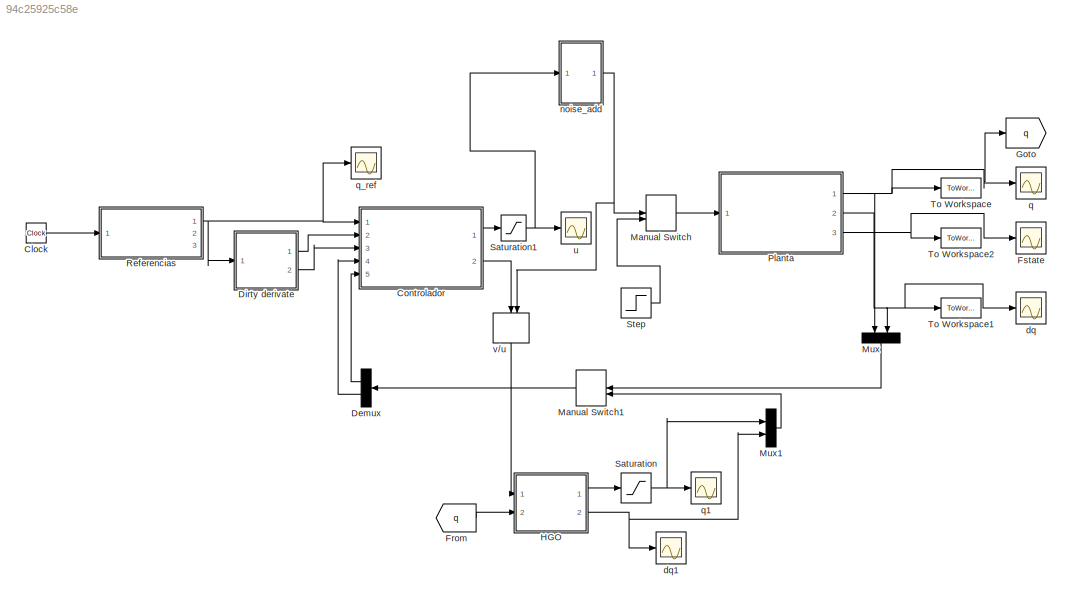
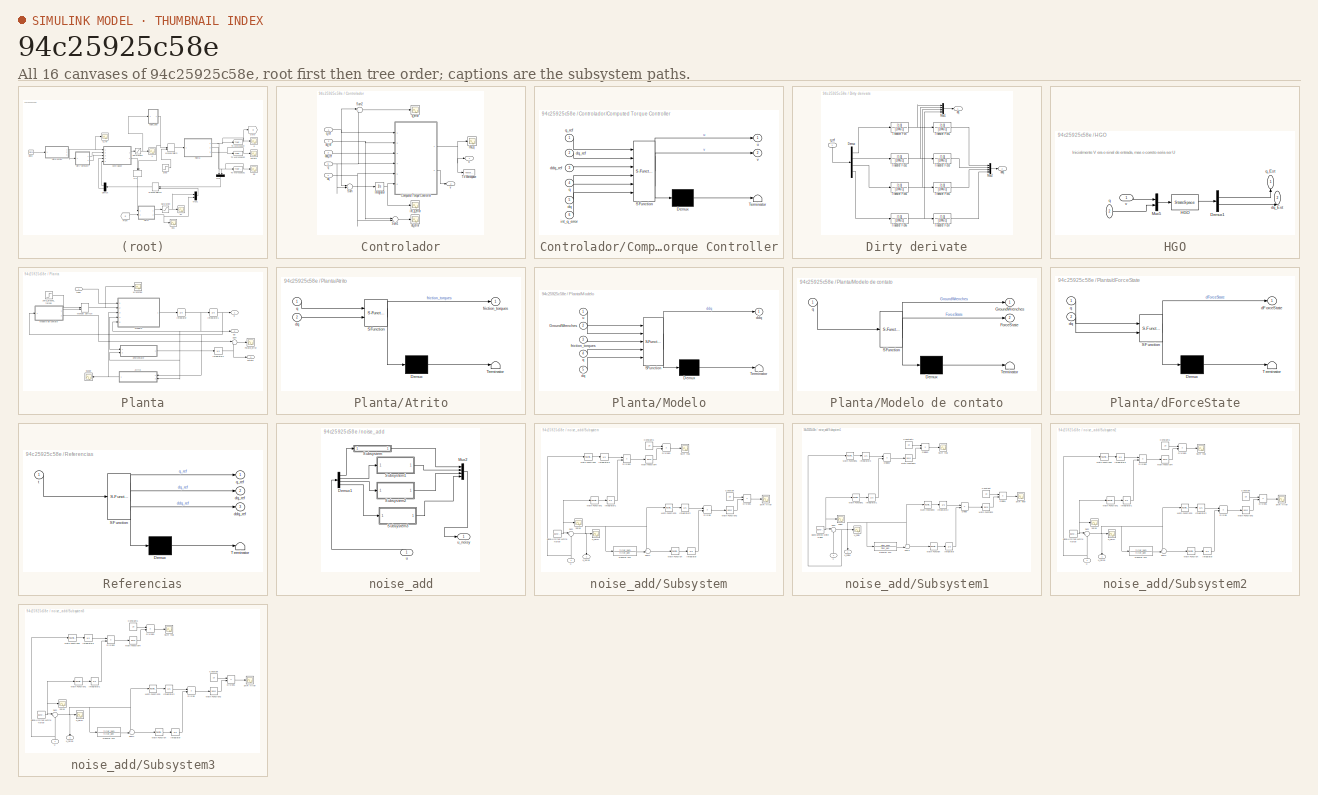
[diagram: thumbnail index - all 16 canvases of the model, root first then tree order]
MODEL slx_94c25925c58e
KIND model
CONFIG AbsTol = auto
CONFIG EnableMultiTasking = on
CONFIG FixedStep = 1e-6
CONFIG MaxStep = 1e-2
CONFIG MinStep = auto
CONFIG RelTol = 1e-3
CONFIG SampleTimeConstraint = Unconstrained
CONFIG Solver = VariableStepAuto
CONFIG SolverName = VariableStepAuto
CONFIG StartTime = 0.0
CONFIG StopTime = 10
BLOCK [Clock] Clock
BLOCK [SubSystem] Controlador
  Ports = [5, 2]
  RequestExecContextInheritance = off
  Variant = off
BLOCK [SubSystem] Controlador/Computed Torque Controller
  ErrorFcn = Stateflow.Translate.translate
  PermitHierarchicalResolution = ExplicitOnly
  Ports = [6, 2]
  RequestExecContextInheritance = off
  SFBlockType = MATLAB Function
  TreatAsAtomicUnit = on
  Variant = off
BLOCK [Demux] Controlador/Computed Torque Controller/ Demux 
  Outputs = 1
  Ports = [1, 1]
BLOCK [S-Function] Controlador/Computed Torque Controller/ SFunction 
  EnableBusSupport = on
  FunctionName = sf_sfun
  Parameters = G_ctrl,Inertia_ctrl,Kd,Ki,Kp,L_ctrl,Mass_ctrl,R_ctrl,h_ctrl,joint_type
  PortCounts = [6 3]
  Ports = [6, 3]
  SFcnIsStateOwnerBlock = off
  SFunctionDeploymentMode = off
  Tag = Stateflow S-Function Leg_4DOF_HGO_v4 1
BLOCK [Terminator] Controlador/Computed Torque Controller/ Terminator 
BLOCK [Inport] Controlador/Computed Torque Controller/ddq_ref
  IconDisplay = Port number
  Port = 3
BLOCK [Inport] Controlador/Computed Torque Controller/dq
  IconDisplay = Port number
  Port = 5
BLOCK [Inport] Controlador/Computed Torque Controller/dq_ref
  IconDisplay = Port number
  Port = 2
BLOCK [Inport] Controlador/Computed Torque Controller/int_q_error
  IconDisplay = Port number
  Port = 6
BLOCK [Inport] Controlador/Computed Torque Controller/q
  IconDisplay = Port number
  Port = 4
BLOCK [Inport] Controlador/Computed Torque Controller/q_ref
  IconDisplay = Port number
BLOCK [Outport] Controlador/Computed Torque Controller/u
  IconDisplay = Port number
BLOCK [Outport] Controlador/Computed Torque Controller/v
  IconDisplay = Port number
  Port = 2
BLOCK [Integrator] Controlador/Integrator
  InitialCondition = zeros(4,1)
  Ports = [1, 1]
BLOCK [Sum] Controlador/Sum
  IconShape = round
  InputSameDT = off
  Inputs = |+-
  OutDataTypeStr = Inherit: Inherit via internal rule
  Ports = [2, 1]
  SaturateOnIntegerOverflow = off
BLOCK [Sum] Controlador/Sum1
  IconShape = round
  InputSameDT = off
  Inputs = |+-
  OutDataTypeStr = Inherit: Inherit via internal rule
  Ports = [2, 1]
  SaturateOnIntegerOverflow = off
BLOCK [Sum] Controlador/Sum2
  IconShape = round
  InputSameDT = off
  Inputs = |+-
  OutDataTypeStr = Inherit: Inherit via internal rule
  Ports = [2, 1]
  SaturateOnIntegerOverflow = off
BLOCK [ToWorkspace] Controlador/To Workspace
  FixptAsFi = on
  MaxDataPoints = inf
  Ports = [1]
  SampleTime = -1
  Save2DSignal = 3-D array (concatenate along third dimension)
  SaveFormat = Timeseries
  VariableName = u
BLOCK [Inport] Controlador/ddq_ref
  IconDisplay = Port number
  Port = 3
BLOCK [Inport] Controlador/dq
  IconDisplay = Port number
  Port = 4
BLOCK [Scope] Controlador/dq_error
  NumInputPorts = 1
  Ports = [1]
  ScopeSpecificationString = C++SS(StrPVP('Location','[1, 49, 1921, 1039]'),StrPVP('Open','off'),MxPVP('AxesTitles',53,'struct(''axes1'',''%<SignalLabel>'')'),MxPVP('ScopeGraphics',56,'struct(''FigureColor'',''[0.5 0.5 0.5]'',''AxesColor'',''[0 0 0]'',''AxesTickColor'',''[1 1 1]'',''LineColors'',''[1 1 0;1 0 1;0 1 1;1 0 0;0 1 0;0 0 1]'',''LineStyles'',''-|-|-|-|-|-'',''LineWidths'',''[0.5 0.5 0.5 0.5 0.5 0.5]'',''MarkerStyles...<+195ch>
BLOCK [Inport] Controlador/dq_ref
  IconDisplay = Port number
  Port = 2
BLOCK [Scope] Controlador/int_q_error
  NumInputPorts = 1
  Ports = [1]
  ScopeSpecificationString = Simulink.scopes.TimeScopeBlockCfg('CurrentConfiguration', extmgr.ConfigurationSet(extmgr.Configuration('Core','General UI',true),extmgr.Configuration('Core','Source UI',true),extmgr.Configuration('Sources','WiredSimulink',true,'DataLoggingVariableName','ScopeData2','DataLoggingLimitDataPoints',true,'DataLoggingSaveFormat','Array','DataLoggingDecimation','1','DataLoggingDecimateData',true),extmgr.C...<+1741ch>
BLOCK [Inport] Controlador/q
  IconDisplay = Port number
  Port = 5
BLOCK [Scope] Controlador/q_error
  NumInputPorts = 1
  Ports = [1]
  ScopeSpecificationString = Simulink.scopes.TimeScopeBlockCfg('CurrentConfiguration', extmgr.ConfigurationSet(extmgr.Configuration('Core','General UI',true),extmgr.Configuration('Core','Source UI',true),extmgr.Configuration('Sources','WiredSimulink',true,'DataLoggingVariableName','ScopeData2','DataLoggingLimitDataPoints',true,'DataLoggingSaveFormat','Array','DataLoggingDecimation','1','DataLoggingDecimateData',true),extmgr.C...<+1782ch>
BLOCK [Inport] Controlador/q_ref
  IconDisplay = Port number
BLOCK [Scope] Controlador/tau_q
  NumInputPorts = 1
  Ports = [1]
  ScopeSpecificationString = Simulink.scopes.TimeScopeBlockCfg('CurrentConfiguration', extmgr.ConfigurationSet(extmgr.Configuration('Core','General UI',true),extmgr.Configuration('Core','Source UI',true),extmgr.Configuration('Sources','WiredSimulink',true,'DataLoggingLimitDataPoints',true,'DataLoggingSaveFormat','Array','DataLoggingDecimation','1','DataLoggingDecimateData',true,'DataLoggingVariableName','ScopeData1'),extmgr.C...<+1926ch>
BLOCK [Outport] Controlador/u
  IconDisplay = Port number
BLOCK [Outport] Controlador/v
  IconDisplay = Port number
  Port = 2
BLOCK [Demux] Demux
  DisplayOption = bar
  Outputs = 2
  Ports = [1, 2]
BLOCK [SubSystem] Dirty derivate
  Ports = [1, 2]
  RequestExecContextInheritance = off
  Variant = off
BLOCK [Demux] Dirty derivate/Demux
  DisplayOption = bar
  Ports = [1, 4]
BLOCK [Mux] Dirty derivate/Mux1
  DisplayOption = bar
  Ports = [4, 1]
BLOCK [Mux] Dirty derivate/Mux2
  DisplayOption = bar
  Ports = [4, 1]
BLOCK [TransferFcn] Dirty derivate/Transfer Fcn
  Denominator = [1/Mu 1]
  Numerator = [1 0]
BLOCK [TransferFcn] Dirty derivate/Transfer Fcn1
  Denominator = [1/Mu 1]
  Numerator = [1 0]
BLOCK [TransferFcn] Dirty derivate/Transfer Fcn2
  Denominator = [1/Mu 1]
  Numerator = [1 0]
BLOCK [TransferFcn] Dirty derivate/Transfer Fcn3
  Denominator = [1/Mu 1]
  Numerator = [1 0]
BLOCK [TransferFcn] Dirty derivate/Transfer Fcn4
  Denominator = [1/Mu 1]
  Numerator = [1 0]
BLOCK [TransferFcn] Dirty derivate/Transfer Fcn5
  Denominator = [1/Mu 1]
  Numerator = [1 0]
BLOCK [TransferFcn] Dirty derivate/Transfer Fcn6
  Denominator = [1/Mu 1]
  Numerator = [1 0]
BLOCK [TransferFcn] Dirty derivate/Transfer Fcn7
  Denominator = [1/Mu 1]
  Numerator = [1 0]
BLOCK [Outport] Dirty derivate/ddq
  IconDisplay = Port number
  Port = 2
BLOCK [Outport] Dirty derivate/dq
  IconDisplay = Port number
BLOCK [Inport] Dirty derivate/q_ref
  IconDisplay = Port number
BLOCK [From] From
  GotoTag = q
BLOCK [Scope] Fstate
  NumInputPorts = 1
  Ports = [1]
  ScopeSpecificationString = Simulink.scopes.TimeScopeBlockCfg('CurrentConfiguration', extmgr.ConfigurationSet(extmgr.Configuration('Core','General UI',true),extmgr.Configuration('Core','Source UI',true),extmgr.Configuration('Sources','WiredSimulink',true,'DataLoggingLimitDataPoints',true,'DataLoggingSaveFormat','Array','DataLoggingDecimation','1','DataLoggingDecimateData',true,'DataLoggingVariableName','ScopeData2'),extmgr.C...<+1750ch>
BLOCK [Goto] Goto
  GotoTag = q
BLOCK [SubSystem] HGO
  Ports = [2, 2]
  RequestExecContextInheritance = off
  Variant = off
BLOCK [Demux] HGO/Demux1
  DisplayOption = bar
  Outputs = 2
  Ports = [1, 2]
BLOCK [StateSpace] HGO/HGO
  A = Ar-Hmu*L_hgo*Cr
  B = [Br Hmu*L_hgo]
  C = eye(8)
  D = zeros(8)
  Ports = [1, 1]
  X0 = [0.01;0.01;0.01;0.01;0.04;0.04;0.04;0.04]
BLOCK [Mux] HGO/Mux5
  DisplayOption = bar
  Inputs = 2
  Ports = [2, 1]
BLOCK [Outport] HGO/dq_Est
  IconDisplay = Port number
  Port = 2
BLOCK [Inport] HGO/q
  IconDisplay = Port number
  Port = 2
BLOCK [Outport] HGO/q_Est
  IconDisplay = Port number
BLOCK [Inport] HGO/v
  IconDisplay = Port number
BLOCK [ManualSwitch] Manual Switch
BLOCK [ManualSwitch] Manual Switch1
  CurrentSetting = 0
BLOCK [Mux] Mux
  DisplayOption = bar
  Inputs = 2
  Ports = [2, 1]
BLOCK [Mux] Mux1
  DisplayOption = bar
  Inputs = 2
  Ports = [2, 1]
BLOCK [SubSystem] Planta
  Ports = [1, 3]
  RequestExecContextInheritance = off
  Variant = off
BLOCK [SubSystem] Planta/Atrito
  ErrorFcn = Stateflow.Translate.translate
  PermitHierarchicalResolution = ExplicitOnly
  Ports = [2, 1]
  RequestExecContextInheritance = off
  SFBlockType = MATLAB Function
  TreatAsAtomicUnit = on
  Variant = off
BLOCK [Demux] Planta/Atrito/ Demux 
  Outputs = 1
  Ports = [1, 1]
BLOCK [S-Function] Planta/Atrito/ SFunction 
  EnableBusSupport = on
  FunctionName = sf_sfun
  PortCounts = [2 2]
  Ports = [2, 2]
  SFcnIsStateOwnerBlock = off
  SFunctionDeploymentMode = off
  Tag = Stateflow S-Function Leg_4DOF_HGO_v4 4
BLOCK [Terminator] Planta/Atrito/ Terminator 
BLOCK [Inport] Planta/Atrito/dq
  IconDisplay = Port number
  Port = 2
BLOCK [Outport] Planta/Atrito/friction_torques
  IconDisplay = Port number
BLOCK [Inport] Planta/Atrito/q
  IconDisplay = Port number
BLOCK [Outport] Planta/Fstate
  IconDisplay = Port number
  Port = 3
BLOCK [Scope] Planta/Fstate_error
  NumInputPorts = 1
  Ports = [1]
  ScopeSpecificationString = Simulink.scopes.TimeScopeBlockCfg('CurrentConfiguration', extmgr.ConfigurationSet(extmgr.Configuration('Core','General UI',true),extmgr.Configuration('Core','Source UI',true),extmgr.Configuration('Sources','WiredSimulink',true,'DataLoggingLimitDataPoints',true,'DataLoggingSaveFormat','Array','DataLoggingDecimation','1','DataLoggingDecimateData',true,'DataLoggingVariableName','ScopeData3'),extmgr.C...<+1744ch>
BLOCK [Integrator] Planta/Integrator
  InitialCondition = dqInit
  Ports = [1, 1]
BLOCK [Integrator] Planta/Integrator1
  InitialCondition = qInit
  Ports = [1, 1]
BLOCK [Integrator] Planta/Integrator2
  InitialCondition = Fstate0
  Ports = [1, 1]
BLOCK [ManualSwitch] Planta/Manual Switch
  CurrentSetting = 0
BLOCK [SubSystem] Planta/Modelo
  ErrorFcn = Stateflow.Translate.translate
  PermitHierarchicalResolution = ExplicitOnly
  Ports = [5, 1]
  RequestExecContextInheritance = off
  SFBlockType = MATLAB Function
  TreatAsAtomicUnit = on
  Variant = off
BLOCK [SubSystem] Planta/Modelo de contato
  ErrorFcn = Stateflow.Translate.translate
  PermitHierarchicalResolution = ExplicitOnly
  Ports = [1, 2]
  RequestExecContextInheritance = off
  SFBlockType = MATLAB Function
  TreatAsAtomicUnit = on
  Variant = off
BLOCK [Demux] Planta/Modelo de contato/ Demux 
  Outputs = 1
  Ports = [1, 1]
BLOCK [S-Function] Planta/Modelo de contato/ SFunction 
  EnableBusSupport = on
  FunctionName = sf_sfun
  Parameters = BodyContactPositions,L,beta,h,joint_type,k_b,s_z
  PortCounts = [1 3]
  Ports = [1, 3]
  SFcnIsStateOwnerBlock = off
  SFunctionDeploymentMode = off
  Tag = Stateflow S-Function Leg_4DOF_HGO_v4 6
BLOCK [Terminator] Planta/Modelo de contato/ Terminator 
BLOCK [Outport] Planta/Modelo de contato/ForceState
  IconDisplay = Port number
  Port = 2
BLOCK [Outport] Planta/Modelo de contato/GroundWrenches
  IconDisplay = Port number
BLOCK [Inport] Planta/Modelo de contato/q
  IconDisplay = Port number
BLOCK [Demux] Planta/Modelo/ Demux 
  Outputs = 1
  Ports = [1, 1]
BLOCK [S-Function] Planta/Modelo/ SFunction 
  EnableBusSupport = on
  FunctionName = sf_sfun
  Parameters = BodyContact,BodyContactPositions,G,Inertia,L,Mass,R,h,joint_type
  PortCounts = [5 2]
  Ports = [5, 2]
  SFcnIsStateOwnerBlock = off
  SFunctionDeploymentMode = off
  Tag = Stateflow S-Function Leg_4DOF_HGO_v4 2
BLOCK [Terminator] Planta/Modelo/ Terminator 
BLOCK [Inport] Planta/Modelo/GroundWrenches
  IconDisplay = Port number
  Port = 2
BLOCK [Outport] Planta/Modelo/ddq
  IconDisplay = Port number
BLOCK [Inport] Planta/Modelo/dq
  IconDisplay = Port number
  Port = 5
BLOCK [Inport] Planta/Modelo/friction_torques
  IconDisplay = Port number
  Port = 3
BLOCK [Inport] Planta/Modelo/q
  IconDisplay = Port number
  Port = 4
BLOCK [Inport] Planta/Modelo/u
  IconDisplay = Port number
BLOCK [Scope] Planta/Scope
  NumInputPorts = 1
  Ports = [1]
  ScopeSpecificationString = Simulink.scopes.TimeScopeBlockCfg('CurrentConfiguration', extmgr.ConfigurationSet(extmgr.Configuration('Core','General UI',true),extmgr.Configuration('Core','Source UI',true),extmgr.Configuration('Sources','WiredSimulink',true,'DataLoggingVariableName','ScopeData4'),extmgr.Configuration('Visuals','Time Domain',true),extmgr.Configuration('Tools','Plot Navigation',true),extmgr.Configuration('Tools',...<+40ch>
BLOCK [Sum] Planta/Sum
  IconShape = round
  InputSameDT = off
  Inputs = |+-
  OutDataTypeStr = Inherit: Inherit via internal rule
  Ports = [2, 1]
  SaturateOnIntegerOverflow = off
BLOCK [SubSystem] Planta/dForceState
  ErrorFcn = Stateflow.Translate.translate
  PermitHierarchicalResolution = ExplicitOnly
  Ports = [2, 1]
  RequestExecContextInheritance = off
  SFBlockType = MATLAB Function
  TreatAsAtomicUnit = on
  Variant = off
BLOCK [Demux] Planta/dForceState/ Demux 
  Outputs = 1
  Ports = [1, 1]
BLOCK [S-Function] Planta/dForceState/ SFunction 
  EnableBusSupport = on
  FunctionName = sf_sfun
  Parameters = BodyContactPositions,L,beta,h,joint_type,k_b,s_z
  PortCounts = [2 2]
  Ports = [2, 2]
  SFcnIsStateOwnerBlock = off
  SFunctionDeploymentMode = off
  Tag = Stateflow S-Function Leg_4DOF_HGO_v4 7
BLOCK [Terminator] Planta/dForceState/ Terminator 
BLOCK [Outport] Planta/dForceState/dForceState
  IconDisplay = Port number
BLOCK [Inport] Planta/dForceState/dq
  IconDisplay = Port number
  Port = 2
BLOCK [Inport] Planta/dForceState/q
  IconDisplay = Port number
BLOCK [Outport] Planta/dq
  IconDisplay = Port number
  Port = 2
BLOCK [Outport] Planta/q
  IconDisplay = Port number
BLOCK [Inport] Planta/tauq
  IconDisplay = Port number
BLOCK [Scope] Planta/wrenches
  NumInputPorts = 1
  Ports = [1]
  ScopeSpecificationString = Simulink.scopes.TimeScopeBlockCfg('CurrentConfiguration', extmgr.ConfigurationSet(extmgr.Configuration('Core','General UI',true),extmgr.Configuration('Core','Source UI',true),extmgr.Configuration('Sources','WiredSimulink',true,'DataLoggingLimitDataPoints',true,'DataLoggingSaveFormat','Array','DataLoggingDecimation','1','DataLoggingDecimateData',true,'DataLoggingVariableName','ScopeData1'),extmgr.C...<+1933ch>
BLOCK [Step] Planta/zero_ground_forces
  After = zeros(6,2)
  Before = zeros(6,2)
  SampleTime = 0
BLOCK [SubSystem] Referencias
  ErrorFcn = Stateflow.Translate.translate
  PermitHierarchicalResolution = ExplicitOnly
  Ports = [1, 3]
  RequestExecContextInheritance = off
  SFBlockType = MATLAB Function
  TreatAsAtomicUnit = on
  Variant = off
BLOCK [Demux] Referencias/ Demux 
  Outputs = 1
  Ports = [1, 1]
BLOCK [S-Function] Referencias/ SFunction 
  EnableBusSupport = on
  FunctionName = sf_sfun
  Parameters = Amp,offset,w
  PortCounts = [1 4]
  Ports = [1, 4]
  SFcnIsStateOwnerBlock = off
  SFunctionDeploymentMode = off
  Tag = Stateflow S-Function Leg_4DOF_HGO_v4 3
BLOCK [Terminator] Referencias/ Terminator 
BLOCK [Outport] Referencias/ddq_ref
  IconDisplay = Port number
  Port = 3
BLOCK [Outport] Referencias/dq_ref
  IconDisplay = Port number
  Port = 2
BLOCK [Outport] Referencias/q_ref
  IconDisplay = Port number
BLOCK [Inport] Referencias/t
  IconDisplay = Port number
BLOCK [Saturate] Saturation
  InputPortMap = u0
  LowerLimit = -6*pi
  Ports = [1, 1]
  UpperLimit = 6*pi
BLOCK [Saturate] Saturation1
  InputPortMap = u0
  LowerLimit = -400
  Ports = [1, 1]
  UpperLimit = 200
BLOCK [Step] Step
  After = [0;0;0;0]
  Before = [0;0;0;0]
  SampleTime = 0
BLOCK [ToWorkspace] To Workspace
  FixptAsFi = on
  MaxDataPoints = inf
  Ports = [1]
  SampleTime = -1
  Save2DSignal = 3-D array (concatenate along third dimension)
  SaveFormat = Timeseries
  VariableName = q
BLOCK [ToWorkspace] To Workspace1
  FixptAsFi = on
  MaxDataPoints = inf
  Ports = [1]
  SampleTime = -1
  Save2DSignal = 3-D array (concatenate along third dimension)
  SaveFormat = Timeseries
  VariableName = dq
BLOCK [ToWorkspace] To Workspace2
  FixptAsFi = on
  MaxDataPoints = inf
  Ports = [1]
  SampleTime = -1
  Save2DSignal = 3-D array (concatenate along third dimension)
  SaveFormat = Timeseries
  VariableName = Fstate
BLOCK [Scope] dq
  NumInputPorts = 1
  Ports = [1]
  ScopeSpecificationString = Simulink.scopes.TimeScopeBlockCfg('CurrentConfiguration', extmgr.ConfigurationSet(extmgr.Configuration('Core','General UI',true),extmgr.Configuration('Core','Source UI',true),extmgr.Configuration('Sources','WiredSimulink',true,'DataLoggingVariableName','ScopeData1','DataLoggingSaveFormat','Array','DataLoggingDecimation','1','DataLoggingDecimateData',true),extmgr.Configuration('Visuals','Time Domai...<+1719ch>
BLOCK [Scope] dq1
  NumInputPorts = 1
  Ports = [1]
  ScopeSpecificationString = Simulink.scopes.TimeScopeBlockCfg('CurrentConfiguration', extmgr.ConfigurationSet(extmgr.Configuration('Core','General UI',true),extmgr.Configuration('Core','Source UI',true),extmgr.Configuration('Sources','WiredSimulink',true,'DataLoggingVariableName','ScopeData2','DataLoggingSaveFormat','Array','DataLoggingDecimation','1','DataLoggingDecimateData',true),extmgr.Configuration('Visuals','Time Domai...<+1754ch>
BLOCK [SubSystem] noise_add
  Ports = [1, 1]
  RequestExecContextInheritance = off
  Variant = off
BLOCK [Demux] noise_add/Demux1
  DisplayOption = bar
  Ports = [1, 4]
BLOCK [Mux] noise_add/Mux2
  DisplayOption = bar
  Ports = [4, 1]
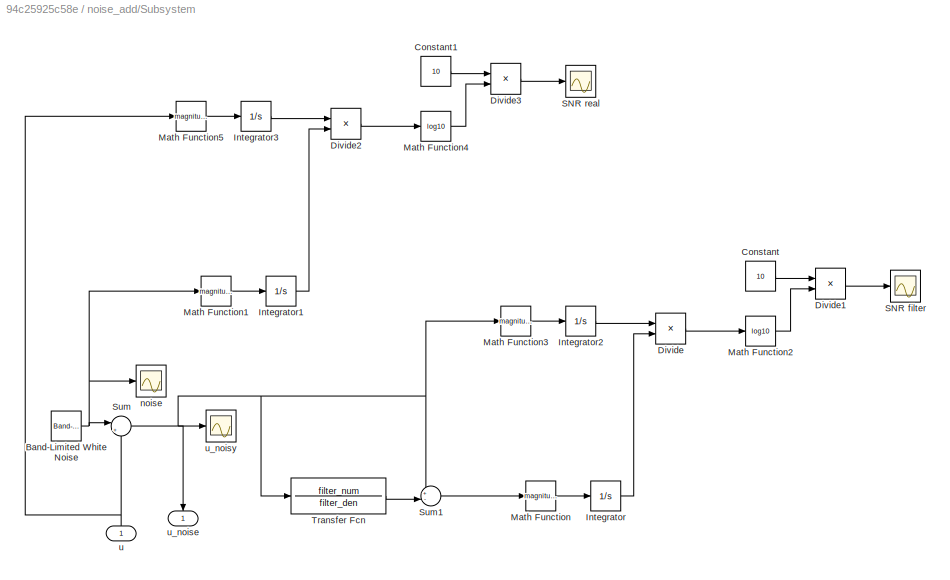
BLOCK [SubSystem] noise_add/Subsystem
  Ports = [1, 1]
  RequestExecContextInheritance = off
  Variant = off
BLOCK [Reference] noise_add/Subsystem/Band-Limited White Noise  REF=simulink/Sources/Band-Limited
White Noise
  Ports = [0, 1]
  SourceBlock = simulink/Sources/Band-Limited\nWhite Noise
  SourceProductBaseCode = SL
  SourceProductName = Simulink
  SourceType = Band-Limited White Noise.
BLOCK [Constant] noise_add/Subsystem/Constant
  Value = 10
BLOCK [Constant] noise_add/Subsystem/Constant1
  Value = 10
BLOCK [Product] noise_add/Subsystem/Divide
  InputSameDT = off
  Inputs = */
  OutDataTypeStr = Inherit: Inherit via internal rule
  Ports = [2, 1]
  RndMeth = Floor
  SaturateOnIntegerOverflow = off
BLOCK [Product] noise_add/Subsystem/Divide1
  InputSameDT = off
  Inputs = **
  OutDataTypeStr = Inherit: Inherit via internal rule
  Ports = [2, 1]
  RndMeth = Floor
  SaturateOnIntegerOverflow = off
BLOCK [Product] noise_add/Subsystem/Divide2
  InputSameDT = off
  Inputs = */
  OutDataTypeStr = Inherit: Inherit via internal rule
  Ports = [2, 1]
  RndMeth = Floor
  SaturateOnIntegerOverflow = off
BLOCK [Product] noise_add/Subsystem/Divide3
  InputSameDT = off
  Inputs = **
  OutDataTypeStr = Inherit: Inherit via internal rule
  Ports = [2, 1]
  RndMeth = Floor
  SaturateOnIntegerOverflow = off
BLOCK [Integrator] noise_add/Subsystem/Integrator
  Ports = [1, 1]
BLOCK [Integrator] noise_add/Subsystem/Integrator1
  Ports = [1, 1]
BLOCK [Integrator] noise_add/Subsystem/Integrator2
  Ports = [1, 1]
BLOCK [Integrator] noise_add/Subsystem/Integrator3
  Ports = [1, 1]
BLOCK [Math] noise_add/Subsystem/Math Function
  Operator = magnitude^2
  Ports = [1, 1]
BLOCK [Math] noise_add/Subsystem/Math Function1
  Operator = magnitude^2
  Ports = [1, 1]
BLOCK [Math] noise_add/Subsystem/Math Function2
  Operator = log10
  Ports = [1, 1]
BLOCK [Math] noise_add/Subsystem/Math Function3
  Operator = magnitude^2
  Ports = [1, 1]
BLOCK [Math] noise_add/Subsystem/Math Function4
  Operator = log10
  Ports = [1, 1]
BLOCK [Math] noise_add/Subsystem/Math Function5
  Operator = magnitude^2
  Ports = [1, 1]
BLOCK [Scope] noise_add/Subsystem/SNR filter
  NumInputPorts = 1
  Ports = [1]
  ScopeSpecificationString = Simulink.scopes.TimeScopeBlockCfg('CurrentConfiguration', extmgr.ConfigurationSet(extmgr.Configuration('Core','General UI',true),extmgr.Configuration('Core','Source UI',true),extmgr.Configuration('Sources','WiredSimulink',true,'DataLoggingVariableName','ScopeData1'),extmgr.Configuration('Visuals','Time Domain',true,'SerializedDisplays',{struct('MinYLimReal','-3.38406','MaxYLimReal','30.48321','YLa...<+1401ch>  <repeated x3 — deduplicated; at blocks: SNR filter>
BLOCK [Scope] noise_add/Subsystem/SNR real
  NumInputPorts = 1
  Ports = [1]
  ScopeSpecificationString = Simulink.scopes.TimeScopeBlockCfg('CurrentConfiguration', extmgr.ConfigurationSet(extmgr.Configuration('Core','General UI',true),extmgr.Configuration('Core','Source UI',true),extmgr.Configuration('Sources','WiredSimulink',true,'DataLoggingVariableName','ScopeData5'),extmgr.Configuration('Visuals','Time Domain',true,'SerializedDisplays',{struct('MinYLimReal','-3.38406','MaxYLimReal','30.48321','YLa...<+1401ch>  <repeated x3 — deduplicated; at blocks: SNR real>
BLOCK [Sum] noise_add/Subsystem/Sum
  IconShape = round
  InputSameDT = off
  Inputs = |++
  OutDataTypeStr = Inherit: Inherit via internal rule
  Ports = [2, 1]
  SaturateOnIntegerOverflow = off
BLOCK [Sum] noise_add/Subsystem/Sum1
  IconShape = round
  InputSameDT = off
  Inputs = +-|
  OutDataTypeStr = Inherit: Inherit via internal rule
  Ports = [2, 1]
  SaturateOnIntegerOverflow = off
BLOCK [TransferFcn] noise_add/Subsystem/Transfer Fcn
  Denominator = filter_den
  Numerator = filter_num
BLOCK [Scope] noise_add/Subsystem/noise
  NumInputPorts = 1
  Ports = [1]
  ScopeSpecificationString = Simulink.scopes.TimeScopeBlockCfg('CurrentConfiguration', extmgr.ConfigurationSet(extmgr.Configuration('Core','General UI',true),extmgr.Configuration('Core','Source UI',true),extmgr.Configuration('Sources','WiredSimulink',true,'DataLoggingSaveFormat','Array','DataLoggingDecimation','1','DataLoggingDecimateData',true,'DataLoggingVariableName','ScopeData4'),extmgr.Configuration('Visuals','Time Domai...<+1722ch>  <repeated x4 — deduplicated; at blocks: noise>
BLOCK [Inport] noise_add/Subsystem/u
  IconDisplay = Port number
BLOCK [Outport] noise_add/Subsystem/u_noise
  IconDisplay = Port number
BLOCK [Scope] noise_add/Subsystem/u_noisy
  NumInputPorts = 1
  Ports = [1]
  ScopeSpecificationString = Simulink.scopes.TimeScopeBlockCfg('CurrentConfiguration', extmgr.ConfigurationSet(extmgr.Configuration('Core','General UI',true),extmgr.Configuration('Core','Source UI',true),extmgr.Configuration('Sources','WiredSimulink',true,'DataLoggingSaveFormat','Array','DataLoggingDecimation','1','DataLoggingDecimateData',true,'DataLoggingVariableName','ScopeData2'),extmgr.Configuration('Visuals','Time Domai...<+1730ch>
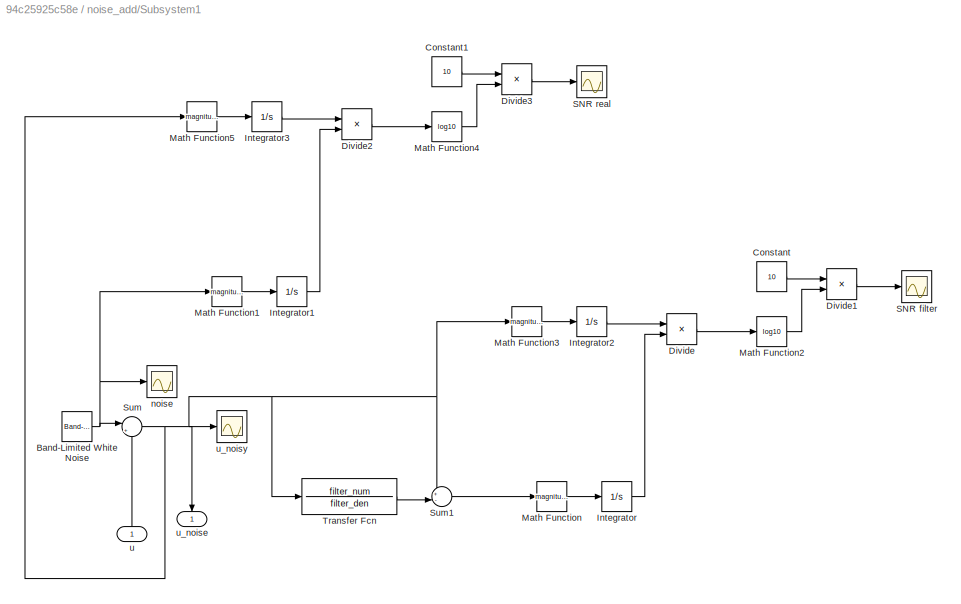
BLOCK [SubSystem] noise_add/Subsystem1
  Ports = [1, 1]
  RequestExecContextInheritance = off
  Variant = off
BLOCK [Reference] noise_add/Subsystem1/Band-Limited White Noise  REF=simulink/Sources/Band-Limited
White Noise
  Ports = [0, 1]
  SourceBlock = simulink/Sources/Band-Limited\nWhite Noise
  SourceProductBaseCode = SL
  SourceProductName = Simulink
  SourceType = Band-Limited White Noise.
BLOCK [Constant] noise_add/Subsystem1/Constant
  Value = 10
BLOCK [Constant] noise_add/Subsystem1/Constant1
  Value = 10
BLOCK [Product] noise_add/Subsystem1/Divide
  InputSameDT = off
  Inputs = */
  OutDataTypeStr = Inherit: Inherit via internal rule
  Ports = [2, 1]
  RndMeth = Floor
  SaturateOnIntegerOverflow = off
BLOCK [Product] noise_add/Subsystem1/Divide1
  InputSameDT = off
  Inputs = **
  OutDataTypeStr = Inherit: Inherit via internal rule
  Ports = [2, 1]
  RndMeth = Floor
  SaturateOnIntegerOverflow = off
BLOCK [Product] noise_add/Subsystem1/Divide2
  InputSameDT = off
  Inputs = */
  OutDataTypeStr = Inherit: Inherit via internal rule
  Ports = [2, 1]
  RndMeth = Floor
  SaturateOnIntegerOverflow = off
BLOCK [Product] noise_add/Subsystem1/Divide3
  InputSameDT = off
  Inputs = **
  OutDataTypeStr = Inherit: Inherit via internal rule
  Ports = [2, 1]
  RndMeth = Floor
  SaturateOnIntegerOverflow = off
BLOCK [Integrator] noise_add/Subsystem1/Integrator
  Ports = [1, 1]
BLOCK [Integrator] noise_add/Subsystem1/Integrator1
  Ports = [1, 1]
BLOCK [Integrator] noise_add/Subsystem1/Integrator2
  Ports = [1, 1]
BLOCK [Integrator] noise_add/Subsystem1/Integrator3
  Ports = [1, 1]
BLOCK [Math] noise_add/Subsystem1/Math Function
  Operator = magnitude^2
  Ports = [1, 1]
BLOCK [Math] noise_add/Subsystem1/Math Function1
  Operator = magnitude^2
  Ports = [1, 1]
BLOCK [Math] noise_add/Subsystem1/Math Function2
  Operator = log10
  Ports = [1, 1]
BLOCK [Math] noise_add/Subsystem1/Math Function3
  Operator = magnitude^2
  Ports = [1, 1]
BLOCK [Math] noise_add/Subsystem1/Math Function4
  Operator = log10
  Ports = [1, 1]
BLOCK [Math] noise_add/Subsystem1/Math Function5
  Operator = magnitude^2
  Ports = [1, 1]
BLOCK [Scope] noise_add/Subsystem1/SNR filter
  NumInputPorts = 1
  Ports = [1]
  ScopeSpecificationString = Simulink.scopes.TimeScopeBlockCfg('CurrentConfiguration', extmgr.ConfigurationSet(extmgr.Configuration('Core','General UI',true),extmgr.Configuration('Core','Source UI',true),extmgr.Configuration('Sources','WiredSimulink',true,'DataLoggingVariableName','ScopeData1'),extmgr.Configuration('Visuals','Time Domain',true,'SerializedDisplays',{struct('MinYLimReal','-1.16775','MaxYLimReal','10.50972','YLa...<+1427ch>
BLOCK [Scope] noise_add/Subsystem1/SNR real
  NumInputPorts = 1
  Ports = [1]
  ScopeSpecificationString = Simulink.scopes.TimeScopeBlockCfg('CurrentConfiguration', extmgr.ConfigurationSet(extmgr.Configuration('Core','General UI',true),extmgr.Configuration('Core','Source UI',true),extmgr.Configuration('Sources','WiredSimulink',true,'DataLoggingVariableName','ScopeData5'),extmgr.Configuration('Visuals','Time Domain',true,'SerializedDisplays',{struct('MinYLimReal','20.42493','MaxYLimReal','54.36946','YLa...<+1429ch>
BLOCK [Sum] noise_add/Subsystem1/Sum
  IconShape = round
  InputSameDT = off
  Inputs = |++
  OutDataTypeStr = Inherit: Inherit via internal rule
  Ports = [2, 1]
  SaturateOnIntegerOverflow = off
BLOCK [Sum] noise_add/Subsystem1/Sum1
  IconShape = round
  InputSameDT = off
  Inputs = +-|
  OutDataTypeStr = Inherit: Inherit via internal rule
  Ports = [2, 1]
  SaturateOnIntegerOverflow = off
BLOCK [TransferFcn] noise_add/Subsystem1/Transfer Fcn
  Denominator = filter_den
  Numerator = filter_num
BLOCK [Scope] noise_add/Subsystem1/noise
  NumInputPorts = 1
  Ports = [1]
BLOCK [Inport] noise_add/Subsystem1/u
  IconDisplay = Port number
BLOCK [Outport] noise_add/Subsystem1/u_noise
  IconDisplay = Port number
BLOCK [Scope] noise_add/Subsystem1/u_noisy
  NumInputPorts = 1
  Ports = [1]
  ScopeSpecificationString = Simulink.scopes.TimeScopeBlockCfg('CurrentConfiguration', extmgr.ConfigurationSet(extmgr.Configuration('Core','General UI',true),extmgr.Configuration('Core','Source UI',true),extmgr.Configuration('Sources','WiredSimulink',true,'DataLoggingSaveFormat','Array','DataLoggingDecimation','1','DataLoggingDecimateData',true,'DataLoggingVariableName','ScopeData2'),extmgr.Configuration('Visuals','Time Domai...<+1730ch>
BLOCK [SubSystem] noise_add/Subsystem2
  Ports = [1, 1]
  RequestExecContextInheritance = off
  Variant = off
BLOCK [Reference] noise_add/Subsystem2/Band-Limited White Noise  REF=simulink/Sources/Band-Limited
White Noise
  Ports = [0, 1]
  SourceBlock = simulink/Sources/Band-Limited\nWhite Noise
  SourceProductBaseCode = SL
  SourceProductName = Simulink
  SourceType = Band-Limited White Noise.
BLOCK [Constant] noise_add/Subsystem2/Constant
  Value = 10
BLOCK [Constant] noise_add/Subsystem2/Constant1
  Value = 10
BLOCK [Product] noise_add/Subsystem2/Divide
  InputSameDT = off
  Inputs = */
  OutDataTypeStr = Inherit: Inherit via internal rule
  Ports = [2, 1]
  RndMeth = Floor
  SaturateOnIntegerOverflow = off
BLOCK [Product] noise_add/Subsystem2/Divide1
  InputSameDT = off
  Inputs = **
  OutDataTypeStr = Inherit: Inherit via internal rule
  Ports = [2, 1]
  RndMeth = Floor
  SaturateOnIntegerOverflow = off
BLOCK [Product] noise_add/Subsystem2/Divide2
  InputSameDT = off
  Inputs = */
  OutDataTypeStr = Inherit: Inherit via internal rule
  Ports = [2, 1]
  RndMeth = Floor
  SaturateOnIntegerOverflow = off
BLOCK [Product] noise_add/Subsystem2/Divide3
  InputSameDT = off
  Inputs = **
  OutDataTypeStr = Inherit: Inherit via internal rule
  Ports = [2, 1]
  RndMeth = Floor
  SaturateOnIntegerOverflow = off
BLOCK [Integrator] noise_add/Subsystem2/Integrator
  Ports = [1, 1]
BLOCK [Integrator] noise_add/Subsystem2/Integrator1
  Ports = [1, 1]
BLOCK [Integrator] noise_add/Subsystem2/Integrator2
  Ports = [1, 1]
BLOCK [Integrator] noise_add/Subsystem2/Integrator3
  Ports = [1, 1]
BLOCK [Math] noise_add/Subsystem2/Math Function
  Operator = magnitude^2
  Ports = [1, 1]
BLOCK [Math] noise_add/Subsystem2/Math Function1
  Operator = magnitude^2
  Ports = [1, 1]
BLOCK [Math] noise_add/Subsystem2/Math Function2
  Operator = log10
  Ports = [1, 1]
BLOCK [Math] noise_add/Subsystem2/Math Function3
  Operator = magnitude^2
  Ports = [1, 1]
BLOCK [Math] noise_add/Subsystem2/Math Function4
  Operator = log10
  Ports = [1, 1]
BLOCK [Math] noise_add/Subsystem2/Math Function5
  Operator = magnitude^2
  Ports = [1, 1]
BLOCK [Scope] noise_add/Subsystem2/SNR filter
  NumInputPorts = 1
  Ports = [1]
BLOCK [Scope] noise_add/Subsystem2/SNR real
  NumInputPorts = 1
  Ports = [1]
BLOCK [Sum] noise_add/Subsystem2/Sum
  IconShape = round
  InputSameDT = off
  Inputs = |++
  OutDataTypeStr = Inherit: Inherit via internal rule
  Ports = [2, 1]
  SaturateOnIntegerOverflow = off
BLOCK [Sum] noise_add/Subsystem2/Sum1
  IconShape = round
  InputSameDT = off
  Inputs = +-|
  OutDataTypeStr = Inherit: Inherit via internal rule
  Ports = [2, 1]
  SaturateOnIntegerOverflow = off
BLOCK [TransferFcn] noise_add/Subsystem2/Transfer Fcn
  Denominator = filter_den
  Numerator = filter_num
BLOCK [Scope] noise_add/Subsystem2/noise
  NumInputPorts = 1
  Ports = [1]
BLOCK [Inport] noise_add/Subsystem2/u
  IconDisplay = Port number
BLOCK [Outport] noise_add/Subsystem2/u_noise
  IconDisplay = Port number
BLOCK [Scope] noise_add/Subsystem2/u_noisy
  NumInputPorts = 1
  Ports = [1]
  ScopeSpecificationString = Simulink.scopes.TimeScopeBlockCfg('CurrentConfiguration', extmgr.ConfigurationSet(extmgr.Configuration('Core','General UI',true),extmgr.Configuration('Core','Source UI',true),extmgr.Configuration('Sources','WiredSimulink',true,'DataLoggingSaveFormat','Array','DataLoggingDecimation','1','DataLoggingDecimateData',true,'DataLoggingVariableName','ScopeData2'),extmgr.Configuration('Visuals','Time Domai...<+1756ch>
BLOCK [SubSystem] noise_add/Subsystem3
  Ports = [1, 1]
  RequestExecContextInheritance = off
  Variant = off
BLOCK [Reference] noise_add/Subsystem3/Band-Limited White Noise  REF=simulink/Sources/Band-Limited
White Noise
  Ports = [0, 1]
  SourceBlock = simulink/Sources/Band-Limited\nWhite Noise
  SourceProductBaseCode = SL
  SourceProductName = Simulink
  SourceType = Band-Limited White Noise.
BLOCK [Constant] noise_add/Subsystem3/Constant
  Value = 10
BLOCK [Constant] noise_add/Subsystem3/Constant1
  Value = 10
BLOCK [Product] noise_add/Subsystem3/Divide
  InputSameDT = off
  Inputs = */
  OutDataTypeStr = Inherit: Inherit via internal rule
  Ports = [2, 1]
  RndMeth = Floor
  SaturateOnIntegerOverflow = off
BLOCK [Product] noise_add/Subsystem3/Divide1
  InputSameDT = off
  Inputs = **
  OutDataTypeStr = Inherit: Inherit via internal rule
  Ports = [2, 1]
  RndMeth = Floor
  SaturateOnIntegerOverflow = off
BLOCK [Product] noise_add/Subsystem3/Divide2
  InputSameDT = off
  Inputs = */
  OutDataTypeStr = Inherit: Inherit via internal rule
  Ports = [2, 1]
  RndMeth = Floor
  SaturateOnIntegerOverflow = off
BLOCK [Product] noise_add/Subsystem3/Divide3
  InputSameDT = off
  Inputs = **
  OutDataTypeStr = Inherit: Inherit via internal rule
  Ports = [2, 1]
  RndMeth = Floor
  SaturateOnIntegerOverflow = off
BLOCK [Integrator] noise_add/Subsystem3/Integrator
  Ports = [1, 1]
BLOCK [Integrator] noise_add/Subsystem3/Integrator1
  Ports = [1, 1]
BLOCK [Integrator] noise_add/Subsystem3/Integrator2
  Ports = [1, 1]
BLOCK [Integrator] noise_add/Subsystem3/Integrator3
  Ports = [1, 1]
BLOCK [Math] noise_add/Subsystem3/Math Function
  Operator = magnitude^2
  Ports = [1, 1]
BLOCK [Math] noise_add/Subsystem3/Math Function1
  Operator = magnitude^2
  Ports = [1, 1]
BLOCK [Math] noise_add/Subsystem3/Math Function2
  Operator = log10
  Ports = [1, 1]
BLOCK [Math] noise_add/Subsystem3/Math Function3
  Operator = magnitude^2
  Ports = [1, 1]
BLOCK [Math] noise_add/Subsystem3/Math Function4
  Operator = log10
  Ports = [1, 1]
BLOCK [Math] noise_add/Subsystem3/Math Function5
  Operator = magnitude^2
  Ports = [1, 1]
BLOCK [Scope] noise_add/Subsystem3/SNR filter
  NumInputPorts = 1
  Ports = [1]
BLOCK [Scope] noise_add/Subsystem3/SNR real
  NumInputPorts = 1
  Ports = [1]
BLOCK [Sum] noise_add/Subsystem3/Sum
  IconShape = round
  InputSameDT = off
  Inputs = |++
  OutDataTypeStr = Inherit: Inherit via internal rule
  Ports = [2, 1]
  SaturateOnIntegerOverflow = off
BLOCK [Sum] noise_add/Subsystem3/Sum1
  IconShape = round
  InputSameDT = off
  Inputs = +-|
  OutDataTypeStr = Inherit: Inherit via internal rule
  Ports = [2, 1]
  SaturateOnIntegerOverflow = off
BLOCK [TransferFcn] noise_add/Subsystem3/Transfer Fcn
  Denominator = filter_den
  Numerator = filter_num
BLOCK [Scope] noise_add/Subsystem3/noise
  NumInputPorts = 1
  Ports = [1]
BLOCK [Inport] noise_add/Subsystem3/u
  IconDisplay = Port number
BLOCK [Outport] noise_add/Subsystem3/u_noise
  IconDisplay = Port number
BLOCK [Scope] noise_add/Subsystem3/u_noisy
  NumInputPorts = 1
  Ports = [1]
  ScopeSpecificationString = Simulink.scopes.TimeScopeBlockCfg('CurrentConfiguration', extmgr.ConfigurationSet(extmgr.Configuration('Core','General UI',true),extmgr.Configuration('Core','Source UI',true),extmgr.Configuration('Sources','WiredSimulink',true,'DataLoggingSaveFormat','Array','DataLoggingDecimation','1','DataLoggingDecimateData',true,'DataLoggingVariableName','ScopeData2'),extmgr.Configuration('Visuals','Time Domai...<+1756ch>
BLOCK [Inport] noise_add/u
  IconDisplay = Port number
BLOCK [Outport] noise_add/u_noisy
  IconDisplay = Port number
BLOCK [Scope] q
  NumInputPorts = 1
  Ports = [1]
  ScopeSpecificationString = Simulink.scopes.TimeScopeBlockCfg('CurrentConfiguration', extmgr.ConfigurationSet(extmgr.Configuration('Core','General UI',true),extmgr.Configuration('Core','Source UI',true),extmgr.Configuration('Sources','WiredSimulink',true,'DataLoggingSaveFormat','Array','DataLoggingDecimation','1','DataLoggingDecimateData',true),extmgr.Configuration('Visuals','Time Domain',true,'SerializedDisplays',{struct('M...<+1688ch>
BLOCK [Scope] q1
  NumInputPorts = 1
  Ports = [1]
  ScopeSpecificationString = Simulink.scopes.TimeScopeBlockCfg('CurrentConfiguration', extmgr.ConfigurationSet(extmgr.Configuration('Core','General UI',true),extmgr.Configuration('Core','Source UI',true),extmgr.Configuration('Sources','WiredSimulink',true,'DataLoggingSaveFormat','Array','DataLoggingDecimation','1','DataLoggingDecimateData',true,'DataLoggingVariableName','ScopeData1'),extmgr.Configuration('Visuals','Time Domai...<+1731ch>
BLOCK [Scope] q_ref
  NumInputPorts = 1
  Ports = [1]
  ScopeSpecificationString = Simulink.scopes.TimeScopeBlockCfg('CurrentConfiguration', extmgr.ConfigurationSet(extmgr.Configuration('Core','General UI',true),extmgr.Configuration('Core','Source UI',true),extmgr.Configuration('Sources','WiredSimulink',true,'DataLoggingLimitDataPoints',true,'DataLoggingSaveFormat','Array','DataLoggingDecimation','1','DataLoggingDecimateData',true,'DataLoggingVariableName','ScopeData1'),extmgr.C...<+1780ch>
BLOCK [Scope] u
  NumInputPorts = 1
  Ports = [1]
  ScopeSpecificationString = Simulink.scopes.TimeScopeBlockCfg('CurrentConfiguration', extmgr.ConfigurationSet(extmgr.Configuration('Core','General UI',true),extmgr.Configuration('Core','Source UI',true),extmgr.Configuration('Sources','WiredSimulink',true,'DataLoggingSaveFormat','Array','DataLoggingDecimation','1','DataLoggingDecimateData',true,'DataLoggingVariableName','ScopeData3'),extmgr.Configuration('Visuals','Time Domai...<+1788ch>
BLOCK [ManualSwitch] v//u
  CurrentSetting = 0
ANNOTATION HGO: Inicialmente V era o sinal de entrada, mas o correto seria ser U
LINE Clock:1 -> Referencias:1
NET Controlador/Computed Torque Controller:1 -> Controlador/To Workspace:1, Controlador/tau_q:1, Controlador/u:1
LINE Controlador/Computed Torque Controller:2 -> Controlador/v:1
NET Controlador/Integrator:1 -> Controlador/Computed Torque Controller:6, Controlador/int_q_error:1
LINE Controlador/Sum1:1 -> Controlador/dq_error:1
LINE Controlador/Sum2:1 -> Controlador/q_error:1
LINE Controlador/Sum:1 -> Controlador/Integrator:1
LINE Controlador/ddq_ref:1 -> Controlador/Computed Torque Controller:3
NET Controlador/dq:1 -> Controlador/Computed Torque Controller:5, Controlador/Sum1:2
NET Controlador/dq_ref:1 -> Controlador/Computed Torque Controller:2, Controlador/Sum1:1
NET Controlador/q:1 -> Controlador/Computed Torque Controller:4, Controlador/Sum2:2, Controlador/Sum:2
NET Controlador/q_ref:1 -> Controlador/Computed Torque Controller:1, Controlador/Sum2:1, Controlador/Sum:1
LINE Controlador:1 -> Saturation1:1
LINE Controlador:2 -> v//u:1
LINE Demux:1 -> Controlador:5
LINE Demux:2 -> Controlador:4
LINE Dirty derivate/Demux:1 -> Dirty derivate/Transfer Fcn:1
LINE Dirty derivate/Demux:2 -> Dirty derivate/Transfer Fcn2:1
LINE Dirty derivate/Demux:3 -> Dirty derivate/Transfer Fcn4:1
LINE Dirty derivate/Demux:4 -> Dirty derivate/Transfer Fcn6:1
LINE Dirty derivate/Mux1:1 -> Dirty derivate/dq:1
LINE Dirty derivate/Mux2:1 -> Dirty derivate/ddq:1
LINE Dirty derivate/Transfer Fcn1:1 -> Dirty derivate/Mux2:1
NET Dirty derivate/Transfer Fcn2:1 -> Dirty derivate/Mux1:2, Dirty derivate/Transfer Fcn3:1
LINE Dirty derivate/Transfer Fcn3:1 -> Dirty derivate/Mux2:2
NET Dirty derivate/Transfer Fcn4:1 -> Dirty derivate/Mux1:3, Dirty derivate/Transfer Fcn5:1
LINE Dirty derivate/Transfer Fcn5:1 -> Dirty derivate/Mux2:3
NET Dirty derivate/Transfer Fcn6:1 -> Dirty derivate/Mux1:4, Dirty derivate/Transfer Fcn7:1
LINE Dirty derivate/Transfer Fcn7:1 -> Dirty derivate/Mux2:4
NET Dirty derivate/Transfer Fcn:1 -> Dirty derivate/Mux1:1, Dirty derivate/Transfer Fcn1:1
LINE Dirty derivate/q_ref:1 -> Dirty derivate/Demux:1
LINE Dirty derivate:1 -> Controlador:2
LINE Dirty derivate:2 -> Controlador:3
LINE From:1 -> HGO:2
LINE HGO/Demux1:1 -> HGO/q_Est:1
LINE HGO/Demux1:2 -> HGO/dq_Est:1
LINE HGO/HGO:1 -> HGO/Demux1:1
LINE HGO/Mux5:1 -> HGO/HGO:1
LINE HGO/q:1 -> HGO/Mux5:2
LINE HGO/v:1 -> HGO/Mux5:1
LINE HGO:1 -> Saturation:1
NET HGO:2 -> Mux1:2, dq1:1
LINE Manual Switch1:1 -> Demux:1
LINE Manual Switch:1 -> Planta:1
LINE Mux1:1 -> Manual Switch1:2
LINE Mux:1 -> Manual Switch1:1
NET Planta/Atrito:1 -> Planta/Modelo:3, Planta/Scope:1
NET Planta/Integrator1:1 -> Planta/Atrito:1, Planta/Modelo de contato:1, Planta/Modelo:4, Planta/dForceState:1, Planta/q:1
NET Planta/Integrator2:1 -> Planta/Fstate:1, Planta/Sum:2
NET Planta/Integrator:1 -> Planta/Atrito:2, Planta/Integrator1:1, Planta/Modelo:5, Planta/dForceState:2, Planta/dq:1
NET Planta/Manual Switch:1 -> Planta/Modelo:2, Planta/wrenches:1
LINE Planta/Modelo de contato:1 -> Planta/Manual Switch:2
LINE Planta/Modelo de contato:2 -> Planta/Sum:1
LINE Planta/Modelo:1 -> Planta/Integrator:1
LINE Planta/Sum:1 -> Planta/Fstate_error:1
LINE Planta/dForceState:1 -> Planta/Integrator2:1
LINE Planta/tauq:1 -> Planta/Modelo:1
LINE Planta/zero_ground_forces:1 -> Planta/Manual Switch:1
NET Planta:1 -> Goto:1, Mux:1, To Workspace:1, q:1
NET Planta:2 -> Mux:2, To Workspace1:1, dq:1
NET Planta:3 -> Fstate:1, To Workspace2:1
NET Referencias:1 -> Controlador:1, Dirty derivate:1, q_ref:1
NET Saturation1:1 -> noise_add:1, u:1
NET Saturation:1 -> Mux1:1, q1:1
LINE Step:1 -> Manual Switch:2
LINE noise_add/Demux1:1 -> noise_add/Subsystem:1
LINE noise_add/Demux1:2 -> noise_add/Subsystem1:1
LINE noise_add/Demux1:3 -> noise_add/Subsystem2:1
LINE noise_add/Demux1:4 -> noise_add/Subsystem3:1
LINE noise_add/Mux2:1 -> noise_add/u_noisy:1
NET noise_add/Subsystem/Band-Limited White Noise:1 -> noise_add/Subsystem/Math Function1:1, noise_add/Subsystem/Sum:1, noise_add/Subsystem/noise:1
LINE noise_add/Subsystem/Constant1:1 -> noise_add/Subsystem/Divide3:1
LINE noise_add/Subsystem/Constant:1 -> noise_add/Subsystem/Divide1:1
LINE noise_add/Subsystem/Divide1:1 -> noise_add/Subsystem/SNR filter:1
LINE noise_add/Subsystem/Divide2:1 -> noise_add/Subsystem/Math Function4:1
LINE noise_add/Subsystem/Divide3:1 -> noise_add/Subsystem/SNR real:1
LINE noise_add/Subsystem/Divide:1 -> noise_add/Subsystem/Math Function2:1
LINE noise_add/Subsystem/Integrator1:1 -> noise_add/Subsystem/Divide2:2
LINE noise_add/Subsystem/Integrator2:1 -> noise_add/Subsystem/Divide:1
LINE noise_add/Subsystem/Integrator3:1 -> noise_add/Subsystem/Divide2:1
LINE noise_add/Subsystem/Integrator:1 -> noise_add/Subsystem/Divide:2
LINE noise_add/Subsystem/Math Function1:1 -> noise_add/Subsystem/Integrator1:1
LINE noise_add/Subsystem/Math Function2:1 -> noise_add/Subsystem/Divide1:2
LINE noise_add/Subsystem/Math Function3:1 -> noise_add/Subsystem/Integrator2:1
LINE noise_add/Subsystem/Math Function4:1 -> noise_add/Subsystem/Divide3:2
LINE noise_add/Subsystem/Math Function5:1 -> noise_add/Subsystem/Integrator3:1
LINE noise_add/Subsystem/Math Function:1 -> noise_add/Subsystem/Integrator:1
LINE noise_add/Subsystem/Sum1:1 -> noise_add/Subsystem/Math Function:1
NET noise_add/Subsystem/Sum:1 -> noise_add/Subsystem/Math Function3:1, noise_add/Subsystem/Sum1:1, noise_add/Subsystem/Transfer Fcn:1, noise_add/Subsystem/u_noise:1, noise_add/Subsystem/u_noisy:1
LINE noise_add/Subsystem/Transfer Fcn:1 -> noise_add/Subsystem/Sum1:2
NET noise_add/Subsystem/u:1 -> noise_add/Subsystem/Math Function5:1, noise_add/Subsystem/Sum:2
NET noise_add/Subsystem1/Band-Limited White Noise:1 -> noise_add/Subsystem1/Math Function1:1, noise_add/Subsystem1/Sum:1, noise_add/Subsystem1/noise:1
LINE noise_add/Subsystem1/Constant1:1 -> noise_add/Subsystem1/Divide3:1
LINE noise_add/Subsystem1/Constant:1 -> noise_add/Subsystem1/Divide1:1
LINE noise_add/Subsystem1/Divide1:1 -> noise_add/Subsystem1/SNR filter:1
LINE noise_add/Subsystem1/Divide2:1 -> noise_add/Subsystem1/Math Function4:1
LINE noise_add/Subsystem1/Divide3:1 -> noise_add/Subsystem1/SNR real:1
LINE noise_add/Subsystem1/Divide:1 -> noise_add/Subsystem1/Math Function2:1
LINE noise_add/Subsystem1/Integrator1:1 -> noise_add/Subsystem1/Divide2:2
LINE noise_add/Subsystem1/Integrator2:1 -> noise_add/Subsystem1/Divide:1
LINE noise_add/Subsystem1/Integrator3:1 -> noise_add/Subsystem1/Divide2:1
LINE noise_add/Subsystem1/Integrator:1 -> noise_add/Subsystem1/Divide:2
LINE noise_add/Subsystem1/Math Function1:1 -> noise_add/Subsystem1/Integrator1:1
LINE noise_add/Subsystem1/Math Function2:1 -> noise_add/Subsystem1/Divide1:2
LINE noise_add/Subsystem1/Math Function3:1 -> noise_add/Subsystem1/Integrator2:1
LINE noise_add/Subsystem1/Math Function4:1 -> noise_add/Subsystem1/Divide3:2
LINE noise_add/Subsystem1/Math Function5:1 -> noise_add/Subsystem1/Integrator3:1
LINE noise_add/Subsystem1/Math Function:1 -> noise_add/Subsystem1/Integrator:1
LINE noise_add/Subsystem1/Sum1:1 -> noise_add/Subsystem1/Math Function:1
NET noise_add/Subsystem1/Sum:1 -> noise_add/Subsystem1/Math Function3:1, noise_add/Subsystem1/Math Function5:1, noise_add/Subsystem1/Sum1:1, noise_add/Subsystem1/Transfer Fcn:1, noise_add/Subsystem1/u_noise:1, noise_add/Subsystem1/u_noisy:1
LINE noise_add/Subsystem1/Transfer Fcn:1 -> noise_add/Subsystem1/Sum1:2
LINE noise_add/Subsystem1/u:1 -> noise_add/Subsystem1/Sum:2
LINE noise_add/Subsystem1:1 -> noise_add/Mux2:2
NET noise_add/Subsystem2/Band-Limited White Noise:1 -> noise_add/Subsystem2/Math Function1:1, noise_add/Subsystem2/Sum:1, noise_add/Subsystem2/noise:1
LINE noise_add/Subsystem2/Constant1:1 -> noise_add/Subsystem2/Divide3:1
LINE noise_add/Subsystem2/Constant:1 -> noise_add/Subsystem2/Divide1:1
LINE noise_add/Subsystem2/Divide1:1 -> noise_add/Subsystem2/SNR filter:1
LINE noise_add/Subsystem2/Divide2:1 -> noise_add/Subsystem2/Math Function4:1
LINE noise_add/Subsystem2/Divide3:1 -> noise_add/Subsystem2/SNR real:1
LINE noise_add/Subsystem2/Divide:1 -> noise_add/Subsystem2/Math Function2:1
LINE noise_add/Subsystem2/Integrator1:1 -> noise_add/Subsystem2/Divide2:2
LINE noise_add/Subsystem2/Integrator2:1 -> noise_add/Subsystem2/Divide:1
LINE noise_add/Subsystem2/Integrator3:1 -> noise_add/Subsystem2/Divide2:1
LINE noise_add/Subsystem2/Integrator:1 -> noise_add/Subsystem2/Divide:2
LINE noise_add/Subsystem2/Math Function1:1 -> noise_add/Subsystem2/Integrator1:1
LINE noise_add/Subsystem2/Math Function2:1 -> noise_add/Subsystem2/Divide1:2
LINE noise_add/Subsystem2/Math Function3:1 -> noise_add/Subsystem2/Integrator2:1
LINE noise_add/Subsystem2/Math Function4:1 -> noise_add/Subsystem2/Divide3:2
LINE noise_add/Subsystem2/Math Function5:1 -> noise_add/Subsystem2/Integrator3:1
LINE noise_add/Subsystem2/Math Function:1 -> noise_add/Subsystem2/Integrator:1
LINE noise_add/Subsystem2/Sum1:1 -> noise_add/Subsystem2/Math Function:1
NET noise_add/Subsystem2/Sum:1 -> noise_add/Subsystem2/Math Function3:1, noise_add/Subsystem2/Sum1:1, noise_add/Subsystem2/Transfer Fcn:1, noise_add/Subsystem2/u_noise:1, noise_add/Subsystem2/u_noisy:1
LINE noise_add/Subsystem2/Transfer Fcn:1 -> noise_add/Subsystem2/Sum1:2
NET noise_add/Subsystem2/u:1 -> noise_add/Subsystem2/Math Function5:1, noise_add/Subsystem2/Sum:2
LINE noise_add/Subsystem2:1 -> noise_add/Mux2:3
NET noise_add/Subsystem3/Band-Limited White Noise:1 -> noise_add/Subsystem3/Math Function1:1, noise_add/Subsystem3/Sum:1, noise_add/Subsystem3/noise:1
LINE noise_add/Subsystem3/Constant1:1 -> noise_add/Subsystem3/Divide3:1
LINE noise_add/Subsystem3/Constant:1 -> noise_add/Subsystem3/Divide1:1
LINE noise_add/Subsystem3/Divide1:1 -> noise_add/Subsystem3/SNR filter:1
LINE noise_add/Subsystem3/Divide2:1 -> noise_add/Subsystem3/Math Function4:1
LINE noise_add/Subsystem3/Divide3:1 -> noise_add/Subsystem3/SNR real:1
LINE noise_add/Subsystem3/Divide:1 -> noise_add/Subsystem3/Math Function2:1
LINE noise_add/Subsystem3/Integrator1:1 -> noise_add/Subsystem3/Divide2:2
LINE noise_add/Subsystem3/Integrator2:1 -> noise_add/Subsystem3/Divide:1
LINE noise_add/Subsystem3/Integrator3:1 -> noise_add/Subsystem3/Divide2:1
LINE noise_add/Subsystem3/Integrator:1 -> noise_add/Subsystem3/Divide:2
LINE noise_add/Subsystem3/Math Function1:1 -> noise_add/Subsystem3/Integrator1:1
LINE noise_add/Subsystem3/Math Function2:1 -> noise_add/Subsystem3/Divide1:2
LINE noise_add/Subsystem3/Math Function3:1 -> noise_add/Subsystem3/Integrator2:1
LINE noise_add/Subsystem3/Math Function4:1 -> noise_add/Subsystem3/Divide3:2
LINE noise_add/Subsystem3/Math Function5:1 -> noise_add/Subsystem3/Integrator3:1
LINE noise_add/Subsystem3/Math Function:1 -> noise_add/Subsystem3/Integrator:1
LINE noise_add/Subsystem3/Sum1:1 -> noise_add/Subsystem3/Math Function:1
NET noise_add/Subsystem3/Sum:1 -> noise_add/Subsystem3/Math Function3:1, noise_add/Subsystem3/Sum1:1, noise_add/Subsystem3/Transfer Fcn:1, noise_add/Subsystem3/u_noise:1, noise_add/Subsystem3/u_noisy:1
LINE noise_add/Subsystem3/Transfer Fcn:1 -> noise_add/Subsystem3/Sum1:2
NET noise_add/Subsystem3/u:1 -> noise_add/Subsystem3/Math Function5:1, noise_add/Subsystem3/Sum:2
LINE noise_add/Subsystem3:1 -> noise_add/Mux2:4
LINE noise_add/Subsystem:1 -> noise_add/Mux2:1
LINE noise_add/u:1 -> noise_add/Demux1:1
NET noise_add:1 -> Manual Switch:1, v//u:2
LINE v//u:1 -> HGO:1
note: NET lines group one-source signal fan-out (src -> all destinations, sorted); 1:1 wires keep LINE
CHART Controlador/Computed Torque Controller states=1 transitions=1
  STATE_LABEL 'eML_blk_kernel()'
  STATE_LABEL 'SCRIPT:\nfunction [u,v] = fcn(q_ref, dq_ref, ddq_ref, q, dq, int_q_error, joint_type, Mass_ctrl, Inertia_ctrl, R_ctrl, L_ctrl, h_ctrl, G_ctrl, Kp, Kd, Ki )\n%% Prostectics control\n\nv = ddq_ref + Kd*(dq_ref - dq) + Kp*(q_ref - q) + Ki*int_q_error;\nu = prosthetics_inverse_dynamics( q, dq, v, joint_type, Mass_ctrl, Inertia_ctrl, R_ctrl, L_ctrl, h_ctrl, G_ctrl );'
CHART Planta/Modelo states=1 transitions=1
  STATE_LABEL 'eML_blk_kernel()'
  STATE_LABEL "SCRIPT:\nfunction ddq = fcn( u, GroundWrenches, friction_torques, q, dq, joint_type, Mass, Inertia, R, L, h, G, BodyContactPositions,  BodyContact )\n% direct dynamics\n\n% n = length(q);\n\n% coder.extrinsic('model_prosthetics_mex');\n% ddq = coder.nullcopy(zeros(n,1));\n% Friction_torques = coder.nullcopy(zeros(n,1));\n\nddq = model_prosthetics( u, q, dq, joint_type, Mass, Inertia, R, L, h, G, friction_to...<+213ch>"
CHART Referencias states=1 transitions=1
  STATE_LABEL 'eML_blk_kernel()'
  STATE_LABEL 'SCRIPT:\nfunction [ q_ref, dq_ref, ddq_ref ] = fcn( t, Amp, offset, w)\n% generate reference\n\n% q_ref = A*sin(w*t + offset);\n% dq_ref = A*w*cos(w*t + offset);\n% ddq_ref = -A*(w^2)*sin(w*t + offset);\n\nq_ref = zeros(4,1);\ndq_ref = zeros(4,1);\nddq_ref = zeros(4,1);\n\nfor i = 1:4\n    q_ref(i) = Amp(i)*sin(w(i)*t + offset(i));\n    dq_ref(i) = Amp(i)*w(i)*cos(w(i)*t + offset(i));\n    ddq_ref(i) = -Amp(i)*(...<+36ch>'
CHART Planta/Atrito states=1 transitions=1
  STATE_LABEL 'eML_blk_kernel()'
  STATE_LABEL 'SCRIPT:\nfunction friction_torques = fcn( q, dq )\n%% Joint friction model\nn = length(q);\nfriction_torques = zeros(n,1);'
CHART Planta/Modelo de contato states=1 transitions=1
  STATE_LABEL 'eML_blk_kernel()'
  STATE_LABEL 'SCRIPT:\nfunction [ GroundWrenches, ForceState ] = fcn( q, BodyContactPositions, s_z, L, h, beta,  k_b, joint_type )\n% function BodyContactWrenches = fcn( t, q, L, h, BodyContactPositions, joint_type, sz, beta, kb)\n% Esta função calcula as forças de contato com o chão\n\n[ GroundWrenches, ForceState ] = ground_model( q, BodyContactPositions, s_z, L, h, beta,  k_b, joint_type );'
CHART Planta/dForceState states=1 transitions=1
  STATE_LABEL 'eML_blk_kernel()'
  STATE_LABEL 'SCRIPT:\nfunction dForceState = fcn( q, dq, L, h, joint_type,  BodyContactPositions, s_z, beta, k_b)\n%% Dinâmica do modelo de contato (em coordenadas inerciais)\n\n%% Computes the velocity body twist of the given point.\nbody = 4;\ncontact_point_h = BodyContactPositions(:,1);\ncontact_point_t = BodyContactPositions(:,2);\nV_h = prosthetics_diff_kinematics( q, dq, L, h, body, contact_point_h, joint_type )...<+614ch>'
